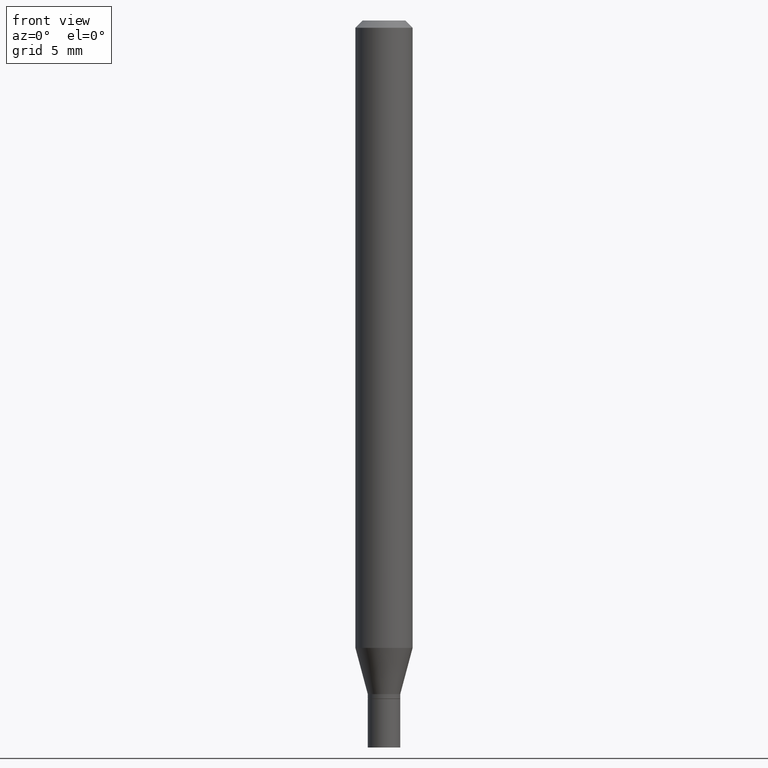
[diagram: clean part render]
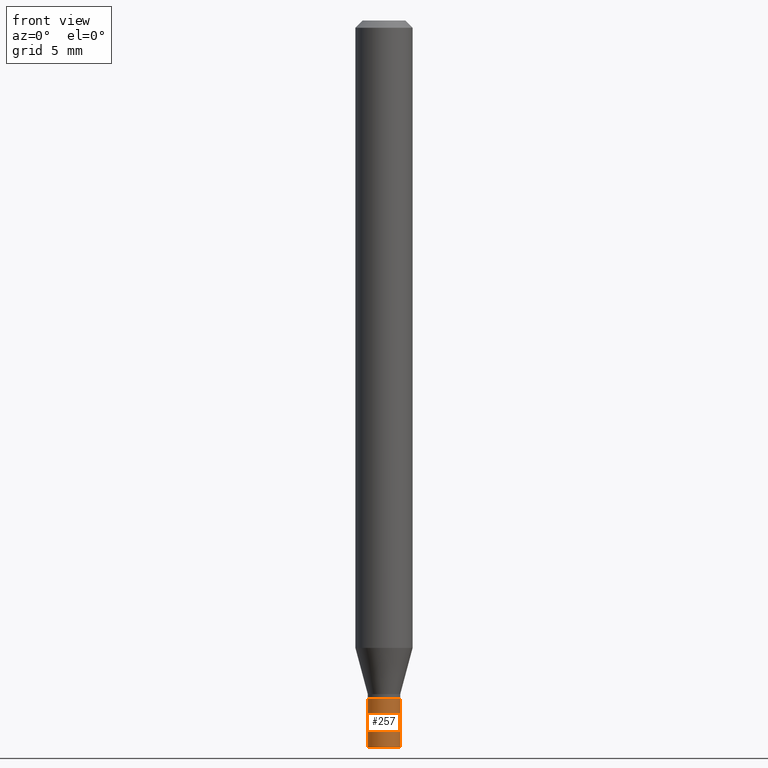
[diagram: same view with one face highlighted and labeled with its STEP entity id]
A machine part, front view. The second image highlights one B-rep face of the part: STEP entity #257.
In plain terms, the highlighted cylindrical surface (edge-blend (fillet) strip) has radius 0.8496 mm, axis along (-0, 0, 1).
Its self-contained STEP definition (entity closure, byte-faithful):
#13 = LINE ( 'NONE', #340, #270 ) ;
#59 = EDGE_CURVE ( 'NONE', #352, #382, #398, .T. ) ;
#62 = EDGE_LOOP ( 'NONE', ( #387, #211, #402, #251 ) ) ;
#67 = CARTESIAN_POINT ( 'NONE',  ( 0.03345000000000000057, -5.120257383413471916E-15, -1.399599999999999955 ) ) ;
#72 = CARTESIAN_POINT ( 'NONE',  ( 0.03345000000000000057, -5.470802109833324821E-15, -1.500000000000000222 ) ) ;
#76 = EDGE_CURVE ( 'NONE', #382, #228, #459, .T. ) ;
#100 = AXIS2_PLACEMENT_3D ( 'NONE', #281, #412, #453 ) ;
#103 = DIRECTION ( 'NONE',  ( -2.445468806185136597E-29, 3.491481338843145583E-15, 1.000000000000000000 ) ) ;
#131 = CARTESIAN_POINT ( 'NONE',  ( 3.668203209277704895E-29, -5.237222008264718177E-15, -1.500000000000000222 ) ) ;
#133 = DIRECTION ( 'NONE',  ( -2.445468806185136877E-29, 3.491481338843145188E-15, 1.000000000000000000 ) ) ;
#152 = EDGE_CURVE ( 'NONE', #183, #228, #225, .T. ) ;
#180 = DIRECTION ( 'NONE',  ( 1.000000000000000000, -6.982962677686279332E-15, 0.000000000000000000 ) ) ;
#183 = VERTEX_POINT ( 'NONE', #318 ) ;
#187 = FACE_OUTER_BOUND ( 'NONE', #62, .T. ) ;
#197 = CARTESIAN_POINT ( 'NONE',  ( -0.03345000000000000057, -4.824273099943039539E-15, -1.500000000000000222 ) ) ;
#211 = ORIENTED_EDGE ( 'NONE', *, *, #59, .T. ) ;
#225 = CIRCLE ( 'NONE', #100, 0.03345000000000000057 ) ;
#228 = VERTEX_POINT ( 'NONE', #67 ) ;
#251 = ORIENTED_EDGE ( 'NONE', *, *, #152, .F. ) ;
#252 = VECTOR ( 'NONE', #133, 39.37007874015748143 ) ;
#254 = DIRECTION ( 'NONE',  ( -2.445468806185136597E-29, 3.491481338843145583E-15, 1.000000000000000000 ) ) ;
#257 = ADVANCED_FACE ( 'NONE', ( #187 ), #289, .T. ) ;
#270 = VECTOR ( 'NONE', #436, 39.37007874015748143 ) ;
#281 = CARTESIAN_POINT ( 'NONE',  ( 3.422678141136717106E-29, -4.886677281844866061E-15, -1.399599999999999955 ) ) ;
#289 = CYLINDRICAL_SURFACE ( 'NONE', #454, 0.03345000000000000057 ) ;
#318 = CARTESIAN_POINT ( 'NONE',  ( -0.03345000000000000057, -4.824273099943039539E-15, -1.399599999999999955 ) ) ;
#325 = CARTESIAN_POINT ( 'NONE',  ( 0.03345000000000000057, -2.335801015686056085E-16, 1.631081131503740528E-30 ) ) ;
#331 = EDGE_CURVE ( 'NONE', #352, #183, #13, .T. ) ;
#340 = CARTESIAN_POINT ( 'NONE',  ( -0.03345000000000000057, 2.376765451117535162E-16, -1.645383787690265928E-30 ) ) ;
#352 = VERTEX_POINT ( 'NONE', #197 ) ;
#382 = VERTEX_POINT ( 'NONE', #72 ) ;
#387 = ORIENTED_EDGE ( 'NONE', *, *, #331, .F. ) ;
#395 = DIRECTION ( 'NONE',  ( 1.000000000000000000, -6.982962677686265922E-15, 4.876176775795935793E-29 ) ) ;
#398 = CIRCLE ( 'NONE', #431, 0.03345000000000000057 ) ;
#402 = ORIENTED_EDGE ( 'NONE', *, *, #76, .T. ) ;
#412 = DIRECTION ( 'NONE',  ( -2.445468806185136597E-29, 3.491481338843145583E-15, 1.000000000000000000 ) ) ;
#431 = AXIS2_PLACEMENT_3D ( 'NONE', #131, #254, #180 ) ;
#436 = DIRECTION ( 'NONE',  ( -2.445468806185136877E-29, 3.491481338843145188E-15, 1.000000000000000000 ) ) ;
#453 = DIRECTION ( 'NONE',  ( 1.000000000000000000, -6.982962677686279332E-15, 0.000000000000000000 ) ) ;
#454 = AXIS2_PLACEMENT_3D ( 'NONE', #462, #103, #395 ) ;
#459 = LINE ( 'NONE', #325, #252 ) ;
#462 = CARTESIAN_POINT ( 'NONE',  ( 0.000000000000000000, 0.000000000000000000, 0.000000000000000000 ) ) ;